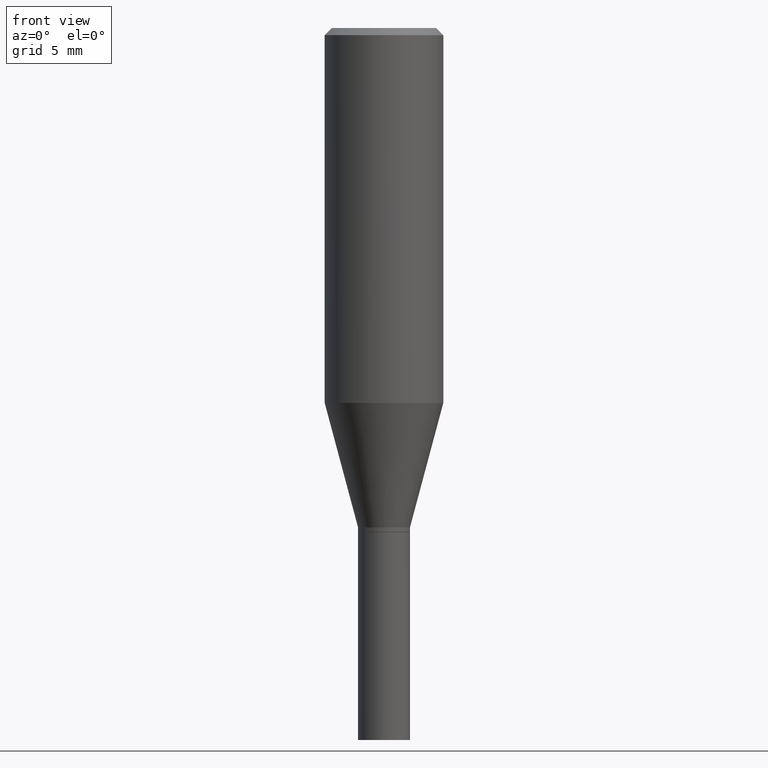
[diagram: clean part render]
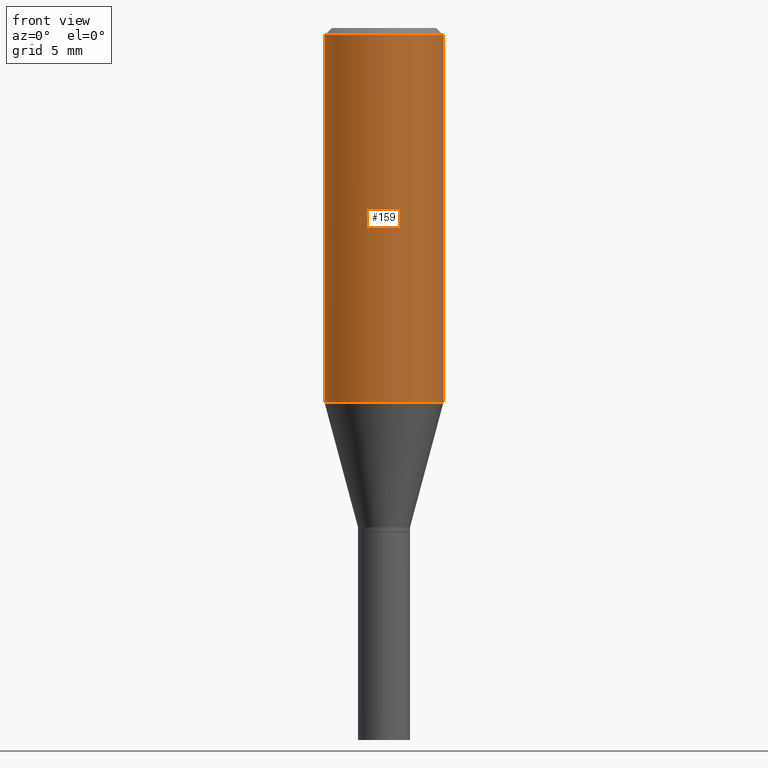
[diagram: same view with one face highlighted and labeled with its STEP entity id]
A machine part, front view. The second image highlights one B-rep face of the part: STEP entity #159.
In plain terms, the highlighted cylindrical surface (partial cylindrical patch) has radius 3.175 mm, axis along (-0, 0, 1).
Its self-contained STEP definition (entity closure, byte-faithful):
#17 = ORIENTED_EDGE ( 'NONE', *, *, #36, .T. ) ;
#27 = AXIS2_PLACEMENT_3D ( 'NONE', #211, #460, #379 ) ;
#29 = CARTESIAN_POINT ( 'NONE',  ( -0.1250000000000000000, -1.868823830520909276E-15, -0.7896368282279090378 ) ) ;
#36 = EDGE_CURVE ( 'NONE', #188, #43, #221, .T. ) ;
#43 = VERTEX_POINT ( 'NONE', #92 ) ;
#48 = DIRECTION ( 'NONE',  ( -2.445468806185136877E-29, 3.491481338843145188E-15, 1.000000000000000000 ) ) ;
#55 = DIRECTION ( 'NONE',  ( 1.000000000000000000, -6.982962677686266711E-15, 0.000000000000000000 ) ) ;
#69 = VECTOR ( 'NONE', #48, 39.37007874015748143 ) ;
#92 = CARTESIAN_POINT ( 'NONE',  ( 0.1250000000000000000, -3.629872584931818241E-15, -0.7896368282279090378 ) ) ;
#103 = CARTESIAN_POINT ( 'NONE',  ( 0.1250000000000000000, -9.252425547934304180E-16, -0.01499999999999999944 ) ) ;
#104 = CYLINDRICAL_SURFACE ( 'NONE', #142, 0.1250000000000000000 ) ;
#110 = LINE ( 'NONE', #187, #69 ) ;
#126 = CARTESIAN_POINT ( 'NONE',  ( 1.931032231646322477E-29, -2.757002250221034902E-15, -0.7896368282279090378 ) ) ;
#139 = FACE_OUTER_BOUND ( 'NONE', #285, .T. ) ;
#142 = AXIS2_PLACEMENT_3D ( 'NONE', #456, #342, #351 ) ;
#146 = VERTEX_POINT ( 'NONE', #171 ) ;
#148 = ORIENTED_EDGE ( 'NONE', *, *, #155, .F. ) ;
#155 = EDGE_CURVE ( 'NONE', #146, #259, #190, .T. ) ;
#159 = ADVANCED_FACE ( 'NONE', ( #139 ), #104, .T. ) ;
#171 = CARTESIAN_POINT ( 'NONE',  ( -0.1250000000000000000, -5.165088154517157584E-16, -0.01499999999999999944 ) ) ;
#187 = CARTESIAN_POINT ( 'NONE',  ( -0.1250000000000000000, 8.881784197001252323E-16, -6.148668862818632227E-30 ) ) ;
#188 = VERTEX_POINT ( 'NONE', #29 ) ;
#190 = CIRCLE ( 'NONE', #27, 0.1250000000000000000 ) ;
#211 = CARTESIAN_POINT ( 'NONE',  ( 3.668203209277705088E-31, -5.237222008264718399E-17, -0.01499999999999999944 ) ) ;
#220 = ORIENTED_EDGE ( 'NONE', *, *, #300, .F. ) ;
#221 = CIRCLE ( 'NONE', #439, 0.1250000000000000000 ) ;
#259 = VERTEX_POINT ( 'NONE', #103 ) ;
#265 = DIRECTION ( 'NONE',  ( -2.445468806185136597E-29, 3.491481338843145583E-15, 1.000000000000000000 ) ) ;
#269 = EDGE_CURVE ( 'NONE', #43, #259, #284, .T. ) ;
#282 = ORIENTED_EDGE ( 'NONE', *, *, #269, .T. ) ;
#284 = LINE ( 'NONE', #324, #418 ) ;
#285 = EDGE_LOOP ( 'NONE', ( #220, #17, #282, #148 ) ) ;
#300 = EDGE_CURVE ( 'NONE', #188, #146, #110, .T. ) ;
#324 = CARTESIAN_POINT ( 'NONE',  ( 0.1250000000000000000, -8.728703347107833388E-16, 6.095220969744919741E-30 ) ) ;
#342 = DIRECTION ( 'NONE',  ( -2.445468806185136597E-29, 3.491481338843145583E-15, 1.000000000000000000 ) ) ;
#351 = DIRECTION ( 'NONE',  ( 1.000000000000000000, -6.982962677686266711E-15, 4.876176775795935793E-29 ) ) ;
#366 = DIRECTION ( 'NONE',  ( -2.445468806185136877E-29, 3.491481338843145188E-15, 1.000000000000000000 ) ) ;
#379 = DIRECTION ( 'NONE',  ( 1.000000000000000000, -6.982962677686266711E-15, 0.000000000000000000 ) ) ;
#418 = VECTOR ( 'NONE', #366, 39.37007874015748143 ) ;
#439 = AXIS2_PLACEMENT_3D ( 'NONE', #126, #265, #55 ) ;
#456 = CARTESIAN_POINT ( 'NONE',  ( 0.000000000000000000, 0.000000000000000000, 0.000000000000000000 ) ) ;
#460 = DIRECTION ( 'NONE',  ( -2.445468806185136597E-29, 3.491481338843145583E-15, 1.000000000000000000 ) ) ;